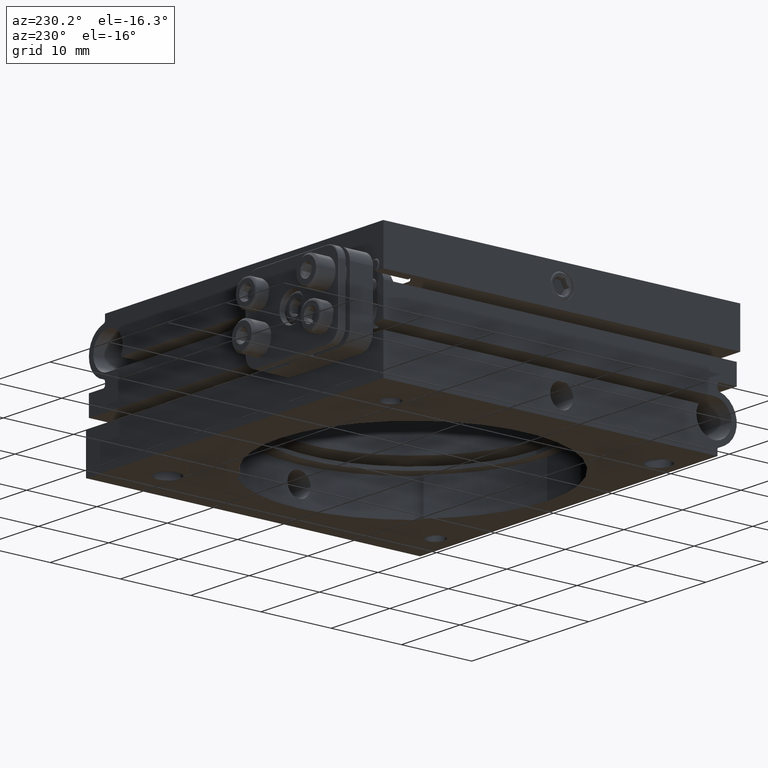
[diagram: clean part render]
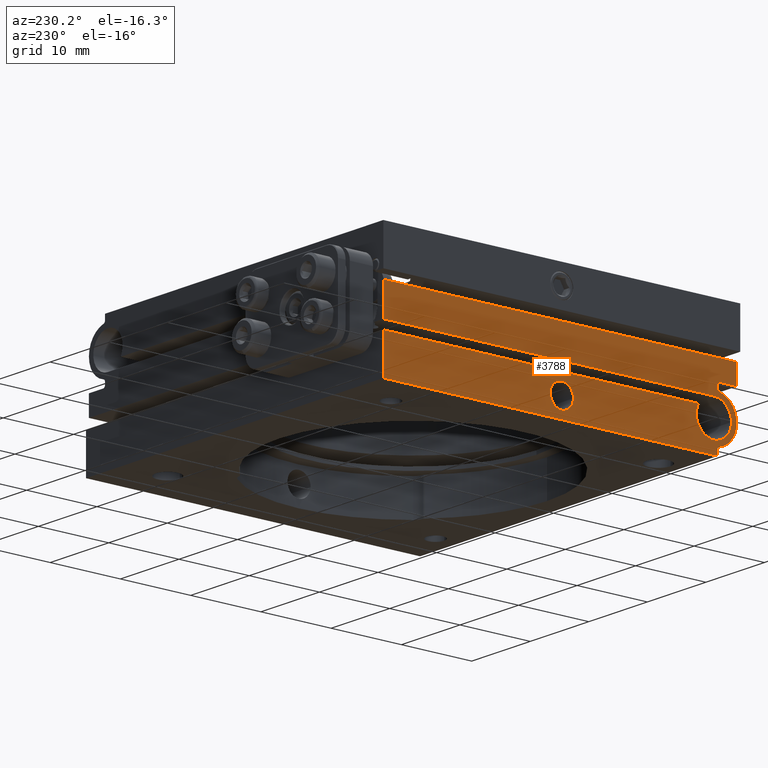
[diagram: same view with one face highlighted and labeled with its STEP entity id]
A machine part, auxiliary view. The second image highlights one B-rep face of the part: STEP entity #3788.
In plain terms, the highlighted planar face has unit normal (1, -0, 0).
Its self-contained STEP definition (entity closure, byte-faithful):
#57 = CIRCLE ( 'NONE', #4724, 1.649999999999998135 ) ;
#116 = ORIENTED_EDGE ( 'NONE', *, *, #8102, .F. ) ;
#317 = DIRECTION ( 'NONE',  ( 1.000000000000000000, -1.665334536937734811E-16, 1.848892746611746419E-32 ) ) ;
#430 = DIRECTION ( 'NONE',  ( 1.848892746611746419E-32, -3.079024946026209384E-48, -1.000000000000000000 ) ) ;
#432 = VERTEX_POINT ( 'NONE', #9844 ) ;
#507 = CARTESIAN_POINT ( 'NONE',  ( -25.40000000000000213, -22.14999999999999147, -7.961308144666279674 ) ) ;
#509 = CIRCLE ( 'NONE', #7615, 3.249999999999999556 ) ;
#613 = ORIENTED_EDGE ( 'NONE', *, *, #7376, .T. ) ;
#748 = EDGE_CURVE ( 'NONE', #4217, #10025, #509, .T. ) ;
#752 = LINE ( 'NONE', #6607, #1907 ) ;
#762 = CARTESIAN_POINT ( 'NONE',  ( -25.40000000000000213, -24.14999999999999147, -4.749999999999998224 ) ) ;
#915 = CIRCLE ( 'NONE', #1946, 0.3499999999999996447 ) ;
#928 = CARTESIAN_POINT ( 'NONE',  ( -25.40000000000000213, -22.14999999999999147, -8.999999999999998224 ) ) ;
#981 = VERTEX_POINT ( 'NONE', #4763 ) ;
#1006 = CIRCLE ( 'NONE', #6030, 2.499999999999998668 ) ;
#1023 = ORIENTED_EDGE ( 'NONE', *, *, #7318, .F. ) ;
#1105 = CARTESIAN_POINT ( 'NONE',  ( -25.40000000000000213, -21.64999999999999147, -4.749999999999998224 ) ) ;
#1133 = ORIENTED_EDGE ( 'NONE', *, *, #7001, .F. ) ;
#1183 = EDGE_CURVE ( 'NONE', #2001, #9766, #3465, .T. ) ;
#1348 = EDGE_LOOP ( 'NONE', ( #1742, #2315 ) ) ;
#1361 = CARTESIAN_POINT ( 'NONE',  ( -25.40000000000000213, -22.50000000000000000, -0.5499999999999983791 ) ) ;
#1551 = VERTEX_POINT ( 'NONE', #4356 ) ;
#1701 = CARTESIAN_POINT ( 'NONE',  ( -25.40000000000000213, -22.49999999999999645, -1.251786170057638037 ) ) ;
#1742 = ORIENTED_EDGE ( 'NONE', *, *, #6675, .F. ) ;
#1786 = VECTOR ( 'NONE', #2242, 1000.000000000000000 ) ;
#1904 = CARTESIAN_POINT ( 'NONE',  ( -25.40000000000000213, -22.49999999999999289, -8.248213829942358188 ) ) ;
#1907 = VECTOR ( 'NONE', #2482, 1000.000000000000000 ) ;
#1946 = AXIS2_PLACEMENT_3D ( 'NONE', #1701, #6702, #10712 ) ;
#1956 = CARTESIAN_POINT ( 'NONE',  ( -25.40000000000000213, -22.14999999999999503, -0.8999999999999998002 ) ) ;
#2001 = VERTEX_POINT ( 'NONE', #1956 ) ;
#2087 = DIRECTION ( 'NONE',  ( 0.000000000000000000, 1.000000000000000000, 0.000000000000000000 ) ) ;
#2169 = VERTEX_POINT ( 'NONE', #9672 ) ;
#2242 = DIRECTION ( 'NONE',  ( 3.081487911019576681E-33, 5.551115123125781470E-17, 1.000000000000000000 ) ) ;
#2315 = ORIENTED_EDGE ( 'NONE', *, *, #5112, .F. ) ;
#2327 = LINE ( 'NONE', #8952, #9990 ) ;
#2390 = EDGE_LOOP ( 'NONE', ( #8523, #2823, #9998, #116, #9331, #1023, #6936, #1133, #10484, #10517, #613, #9721, #8269, #9850, #9763, #6303, #3918 ) ) ;
#2412 = CARTESIAN_POINT ( 'NONE',  ( -25.40000000000000213, -22.14999999999999858, -1.538691855333716552 ) ) ;
#2448 = VECTOR ( 'NONE', #6972, 1000.000000000000000 ) ;
#2482 = DIRECTION ( 'NONE',  ( 1.665334536937734811E-16, 1.000000000000000000, 0.000000000000000000 ) ) ;
#2504 = CARTESIAN_POINT ( 'NONE',  ( -25.40000000000000213, -21.64999999999999147, -4.749999999999998224 ) ) ;
#2533 = EDGE_CURVE ( 'NONE', #1551, #9766, #752, .T. ) ;
#2823 = ORIENTED_EDGE ( 'NONE', *, *, #6276, .T. ) ;
#2858 = EDGE_CURVE ( 'NONE', #10326, #2001, #5780, .T. ) ;
#2923 = CARTESIAN_POINT ( 'NONE',  ( -25.39999999999999503, 25.39999999999999858, 8.999999999999998224 ) ) ;
#2951 = DIRECTION ( 'NONE',  ( 0.000000000000000000, 1.000000000000000000, 0.000000000000000000 ) ) ;
#3009 = LINE ( 'NONE', #507, #1786 ) ;
#3018 = CARTESIAN_POINT ( 'NONE',  ( -25.40000000000000213, -19.48493649053889598, -3.499999999999999556 ) ) ;
#3055 = CARTESIAN_POINT ( 'NONE',  ( -25.40000000000000568, -22.41736111111110219, -1.591890292413145280 ) ) ;
#3081 = DIRECTION ( 'NONE',  ( -1.665334536937734811E-16, -1.000000000000000000, -0.000000000000000000 ) ) ;
#3115 = AXIS2_PLACEMENT_3D ( 'NONE', #4323, #6710, #10074 ) ;
#3140 = DIRECTION ( 'NONE',  ( 0.000000000000000000, -1.000000000000000000, 0.000000000000000000 ) ) ;
#3425 = LINE ( 'NONE', #8375, #5583 ) ;
#3465 = CIRCLE ( 'NONE', #3115, 0.3499999999999996447 ) ;
#3549 = VERTEX_POINT ( 'NONE', #762 ) ;
#3639 = DIRECTION ( 'NONE',  ( 1.665334536937734811E-16, 1.000000000000000000, 0.000000000000000000 ) ) ;
#3788 = ADVANCED_FACE ( 'NONE', ( #4388, #9429 ), #9320, .F. ) ;
#3902 = CARTESIAN_POINT ( 'NONE',  ( -25.40000000000000213, -19.14999999999999503, -4.749999999999998224 ) ) ;
#3918 = ORIENTED_EDGE ( 'NONE', *, *, #2533, .F. ) ;
#3957 = DIRECTION ( 'NONE',  ( -1.000000000000000000, 5.551115123125782702E-17, -1.232595164407830946E-32 ) ) ;
#4093 = DIRECTION ( 'NONE',  ( 0.000000000000000000, 3.564639838027765997E-15, 1.000000000000000000 ) ) ;
#4217 = VERTEX_POINT ( 'NONE', #3055 ) ;
#4284 = DIRECTION ( 'NONE',  ( 1.000000000000000000, -5.551115123125782702E-17, 1.232595164407830946E-32 ) ) ;
#4323 = CARTESIAN_POINT ( 'NONE',  ( -25.40000000000000213, -22.49999999999999645, -0.8999999999999984679 ) ) ;
#4356 = CARTESIAN_POINT ( 'NONE',  ( -25.40000000000000213, -24.89999999999999503, -0.5499999999999996003 ) ) ;
#4388 = FACE_OUTER_BOUND ( 'NONE', #2390, .T. ) ;
#4519 = DIRECTION ( 'NONE',  ( 1.000000000000000000, -5.551115123125782702E-17, 1.232595164407830946E-32 ) ) ;
#4580 = LINE ( 'NONE', #8490, #4893 ) ;
#4613 = CARTESIAN_POINT ( 'NONE',  ( -25.39999999999999858, -2.406408405875026486E-15, -6.249999999999998224 ) ) ;
#4675 = VECTOR ( 'NONE', #4093, 1000.000000000000000 ) ;
#4724 = AXIS2_PLACEMENT_3D ( 'NONE', #4613, #7983, #7928 ) ;
#4763 = CARTESIAN_POINT ( 'NONE',  ( -25.39999999999999858, -1.650000000000000355, -6.249999999999998224 ) ) ;
#4772 = DIRECTION ( 'NONE',  ( 1.665334536937734811E-16, 1.000000000000000000, 0.000000000000000000 ) ) ;
#4780 = CARTESIAN_POINT ( 'NONE',  ( -25.39999999999999503, 25.39999999999999503, -2.250000000000000000 ) ) ;
#4870 = AXIS2_PLACEMENT_3D ( 'NONE', #2923, #317, #8677 ) ;
#4880 = CIRCLE ( 'NONE', #5565, 1.649999999999998135 ) ;
#4893 = VECTOR ( 'NONE', #6042, 1000.000000000000000 ) ;
#5075 = CARTESIAN_POINT ( 'NONE',  ( -25.39999999999999503, 25.39999999999999503, -9.000000000000000000 ) ) ;
#5108 = DIRECTION ( 'NONE',  ( 0.000000000000000000, 1.000000000000000000, 1.734723475976808080E-15 ) ) ;
#5112 = EDGE_CURVE ( 'NONE', #432, #981, #4880, .T. ) ;
#5203 = VERTEX_POINT ( 'NONE', #10285 ) ;
#5288 = EDGE_CURVE ( 'NONE', #10620, #8649, #9582, .T. ) ;
#5509 = CARTESIAN_POINT ( 'NONE',  ( -25.39999999999999503, 25.39999999999999858, 8.999999999999998224 ) ) ;
#5565 = AXIS2_PLACEMENT_3D ( 'NONE', #9765, #3957, #3140 ) ;
#5576 = VERTEX_POINT ( 'NONE', #9311 ) ;
#5583 = VECTOR ( 'NONE', #9127, 1000.000000000000000 ) ;
#5780 = LINE ( 'NONE', #2412, #4675 ) ;
#5855 = DIRECTION ( 'NONE',  ( 0.000000000000000000, 1.000000000000000000, 0.000000000000000000 ) ) ;
#5856 = CIRCLE ( 'NONE', #9492, 0.3499999999999996447 ) ;
#6030 = AXIS2_PLACEMENT_3D ( 'NONE', #2504, #10044, #5108 ) ;
#6042 = DIRECTION ( 'NONE',  ( -1.848892746611746419E-32, 3.079024946026209384E-48, 1.000000000000000000 ) ) ;
#6114 = EDGE_CURVE ( 'NONE', #6650, #5203, #4580, .T. ) ;
#6276 = EDGE_CURVE ( 'NONE', #7547, #5203, #3425, .T. ) ;
#6303 = ORIENTED_EDGE ( 'NONE', *, *, #1183, .T. ) ;
#6326 = DIRECTION ( 'NONE',  ( -1.000000000000000000, 5.551115123125782702E-17, -1.232595164407830946E-32 ) ) ;
#6552 = EDGE_CURVE ( 'NONE', #9966, #10620, #6844, .T. ) ;
#6559 = AXIS2_PLACEMENT_3D ( 'NONE', #10337, #6326, #2087 ) ;
#6581 = CARTESIAN_POINT ( 'NONE',  ( -25.40000000000000213, -24.89999999999999503, 2.250000000000000444 ) ) ;
#6607 = CARTESIAN_POINT ( 'NONE',  ( -25.39999999999999503, 25.39999999999999858, -0.5499999999999983791 ) ) ;
#6650 = VERTEX_POINT ( 'NONE', #4780 ) ;
#6675 = EDGE_CURVE ( 'NONE', #981, #432, #57, .T. ) ;
#6702 = DIRECTION ( 'NONE',  ( 1.000000000000000000, -5.551115123125782702E-17, 1.232595164407830946E-32 ) ) ;
#6710 = DIRECTION ( 'NONE',  ( 1.000000000000000000, -5.551115123125782702E-17, 1.232595164407830946E-32 ) ) ;
#6844 = LINE ( 'NONE', #10152, #9395 ) ;
#6909 = DIRECTION ( 'NONE',  ( -1.000000000000000000, 5.551115123125782702E-17, -1.232595164407830946E-32 ) ) ;
#6936 = ORIENTED_EDGE ( 'NONE', *, *, #9926, .F. ) ;
#6959 = DIRECTION ( 'NONE',  ( 0.000000000000000000, 1.000000000000000000, 0.000000000000000000 ) ) ;
#6972 = DIRECTION ( 'NONE',  ( -1.848892746611746419E-32, 3.079024946026209384E-48, 1.000000000000000000 ) ) ;
#6982 = VERTEX_POINT ( 'NONE', #3902 ) ;
#6985 = CIRCLE ( 'NONE', #10279, 2.499999999999998668 ) ;
#7001 = EDGE_CURVE ( 'NONE', #8649, #10439, #10352, .T. ) ;
#7159 = CARTESIAN_POINT ( 'NONE',  ( -25.39999999999999503, 25.39999999999999858, -2.249999999999998668 ) ) ;
#7204 = EDGE_CURVE ( 'NONE', #4217, #10326, #915, .T. ) ;
#7318 = EDGE_CURVE ( 'NONE', #6982, #3549, #6985, .T. ) ;
#7376 = EDGE_CURVE ( 'NONE', #9966, #5576, #3009, .T. ) ;
#7547 = VERTEX_POINT ( 'NONE', #6581 ) ;
#7615 = AXIS2_PLACEMENT_3D ( 'NONE', #9224, #4284, #5855 ) ;
#7928 = DIRECTION ( 'NONE',  ( 0.000000000000000000, -1.000000000000000000, 0.000000000000000000 ) ) ;
#7983 = DIRECTION ( 'NONE',  ( -1.000000000000000000, 5.551115123125782702E-17, -1.232595164407830946E-32 ) ) ;
#8080 = LINE ( 'NONE', #7159, #8957 ) ;
#8102 = EDGE_CURVE ( 'NONE', #2169, #6650, #8080, .T. ) ;
#8122 = CARTESIAN_POINT ( 'NONE',  ( -25.39999999999999503, 25.40000000000000213, -3.500000000000001332 ) ) ;
#8140 = EDGE_CURVE ( 'NONE', #7547, #1551, #2327, .T. ) ;
#8269 = ORIENTED_EDGE ( 'NONE', *, *, #748, .F. ) ;
#8375 = CARTESIAN_POINT ( 'NONE',  ( -25.40000000000000213, -25.39999999999999858, 2.250000000000000444 ) ) ;
#8490 = CARTESIAN_POINT ( 'NONE',  ( -25.39999999999999503, 25.39999999999999858, 8.999999999999998224 ) ) ;
#8523 = ORIENTED_EDGE ( 'NONE', *, *, #8140, .F. ) ;
#8649 = VERTEX_POINT ( 'NONE', #8122 ) ;
#8677 = DIRECTION ( 'NONE',  ( 1.665334536937734811E-16, 1.000000000000000000, 0.000000000000000000 ) ) ;
#8822 = CIRCLE ( 'NONE', #6559, 2.499999999999998668 ) ;
#8900 = CARTESIAN_POINT ( 'NONE',  ( -25.39999999999999503, 25.39999999999999858, -3.500000000000001332 ) ) ;
#8952 = CARTESIAN_POINT ( 'NONE',  ( -25.40000000000000213, -24.89999999999999858, 8.999999999999998224 ) ) ;
#8957 = VECTOR ( 'NONE', #4772, 1000.000000000000000 ) ;
#9127 = DIRECTION ( 'NONE',  ( 0.000000000000000000, 1.000000000000000000, -5.551115123125781470E-17 ) ) ;
#9224 = CARTESIAN_POINT ( 'NONE',  ( -25.40000000000000213, -21.64999999999999147, -4.749999999999998224 ) ) ;
#9264 = CARTESIAN_POINT ( 'NONE',  ( -25.40000000000000213, -22.14999999999999503, -1.251786170057638703 ) ) ;
#9311 = CARTESIAN_POINT ( 'NONE',  ( -25.40000000000000213, -22.14999999999999147, -8.248213829942358188 ) ) ;
#9320 = PLANE ( 'NONE',  #4870 ) ;
#9331 = ORIENTED_EDGE ( 'NONE', *, *, #10348, .F. ) ;
#9395 = VECTOR ( 'NONE', #3639, 1000.000000000000000 ) ;
#9429 = FACE_BOUND ( 'NONE', #1348, .T. ) ;
#9492 = AXIS2_PLACEMENT_3D ( 'NONE', #1904, #4519, #6959 ) ;
#9582 = LINE ( 'NONE', #5509, #2448 ) ;
#9606 = EDGE_CURVE ( 'NONE', #5576, #10025, #5856, .T. ) ;
#9672 = CARTESIAN_POINT ( 'NONE',  ( -25.40000000000000213, -21.64999999999999503, -2.249999999999998668 ) ) ;
#9721 = ORIENTED_EDGE ( 'NONE', *, *, #9606, .T. ) ;
#9763 = ORIENTED_EDGE ( 'NONE', *, *, #2858, .T. ) ;
#9765 = CARTESIAN_POINT ( 'NONE',  ( -25.39999999999999858, -2.406408405875026486E-15, -6.249999999999998224 ) ) ;
#9766 = VERTEX_POINT ( 'NONE', #1361 ) ;
#9844 = CARTESIAN_POINT ( 'NONE',  ( -25.39999999999999858, 1.649999999999995914, -6.249999999999998224 ) ) ;
#9850 = ORIENTED_EDGE ( 'NONE', *, *, #7204, .T. ) ;
#9926 = EDGE_CURVE ( 'NONE', #10439, #6982, #1006, .T. ) ;
#9966 = VERTEX_POINT ( 'NONE', #928 ) ;
#9990 = VECTOR ( 'NONE', #430, 1000.000000000000000 ) ;
#9998 = ORIENTED_EDGE ( 'NONE', *, *, #6114, .F. ) ;
#10025 = VERTEX_POINT ( 'NONE', #10307 ) ;
#10044 = DIRECTION ( 'NONE',  ( -1.000000000000000000, 5.551115123125782702E-17, -1.232595164407830946E-32 ) ) ;
#10074 = DIRECTION ( 'NONE',  ( 0.000000000000000000, -1.000000000000000000, 1.858632295689437976E-15 ) ) ;
#10101 = VECTOR ( 'NONE', #3081, 1000.000000000000000 ) ;
#10152 = CARTESIAN_POINT ( 'NONE',  ( -25.39999999999999503, 25.39999999999999858, -8.999999999999998224 ) ) ;
#10279 = AXIS2_PLACEMENT_3D ( 'NONE', #1105, #6909, #2951 ) ;
#10285 = CARTESIAN_POINT ( 'NONE',  ( -25.39999999999999503, 25.39999999999999503, 2.249999999999996891 ) ) ;
#10307 = CARTESIAN_POINT ( 'NONE',  ( -25.40000000000000568, -22.41736111111110219, -7.908109707586850057 ) ) ;
#10326 = VERTEX_POINT ( 'NONE', #9264 ) ;
#10337 = CARTESIAN_POINT ( 'NONE',  ( -25.40000000000000213, -21.64999999999999147, -4.749999999999998224 ) ) ;
#10348 = EDGE_CURVE ( 'NONE', #3549, #2169, #8822, .T. ) ;
#10352 = LINE ( 'NONE', #8900, #10101 ) ;
#10439 = VERTEX_POINT ( 'NONE', #3018 ) ;
#10484 = ORIENTED_EDGE ( 'NONE', *, *, #5288, .F. ) ;
#10517 = ORIENTED_EDGE ( 'NONE', *, *, #6552, .F. ) ;
#10620 = VERTEX_POINT ( 'NONE', #5075 ) ;
#10712 = DIRECTION ( 'NONE',  ( 0.000000000000000000, 1.000000000000000000, 0.000000000000000000 ) ) ;